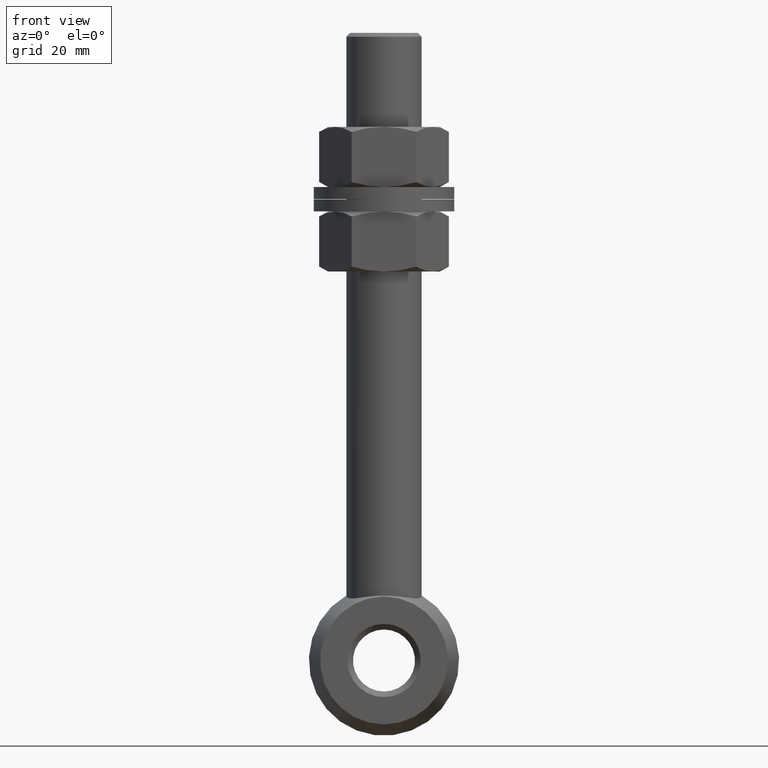
[diagram: clean part render]
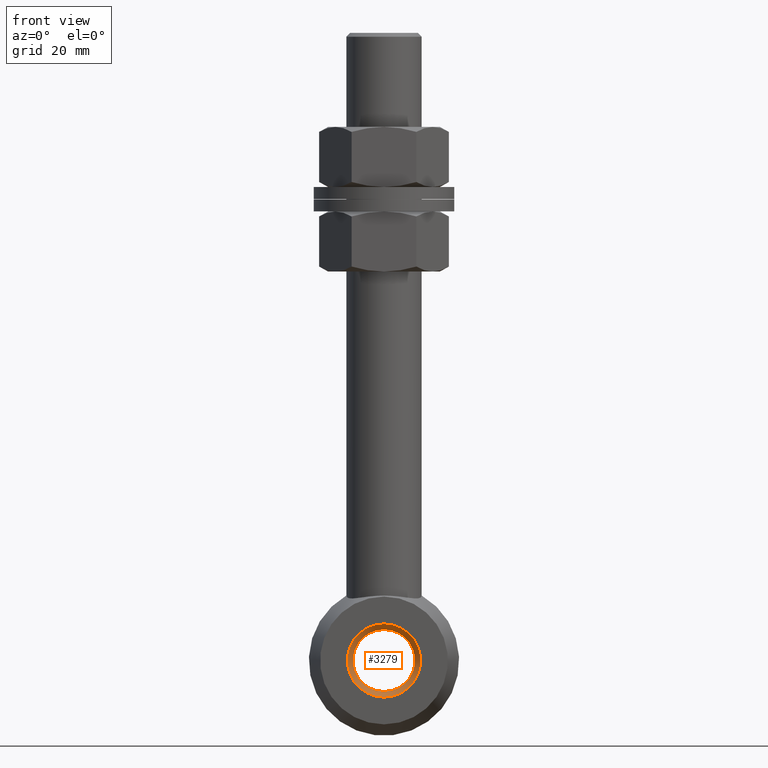
[diagram: same view with one face highlighted and labeled with its STEP entity id]
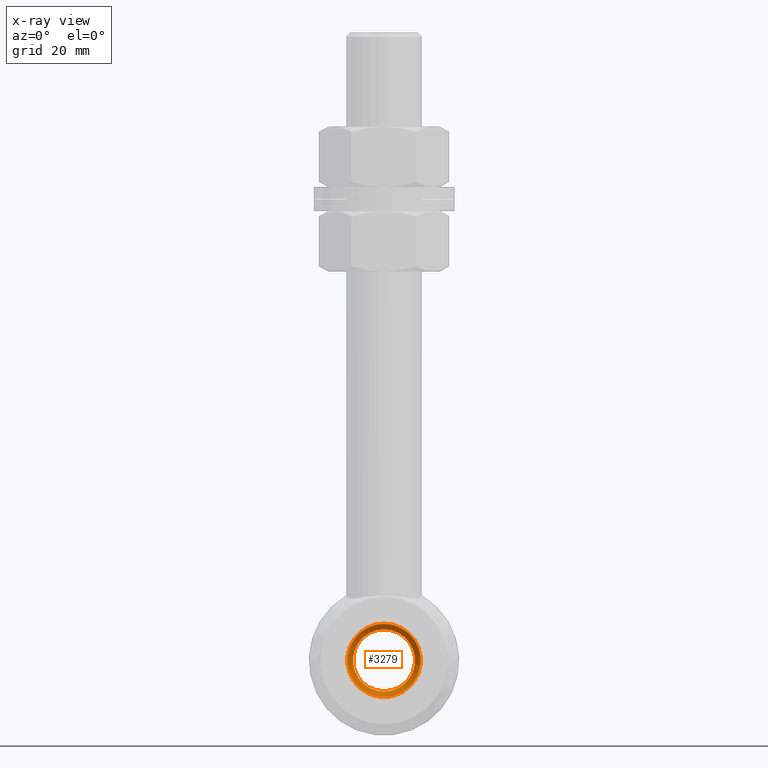
[diagram: x-ray of the same camera — body ghosted, the highlighted face saturated]
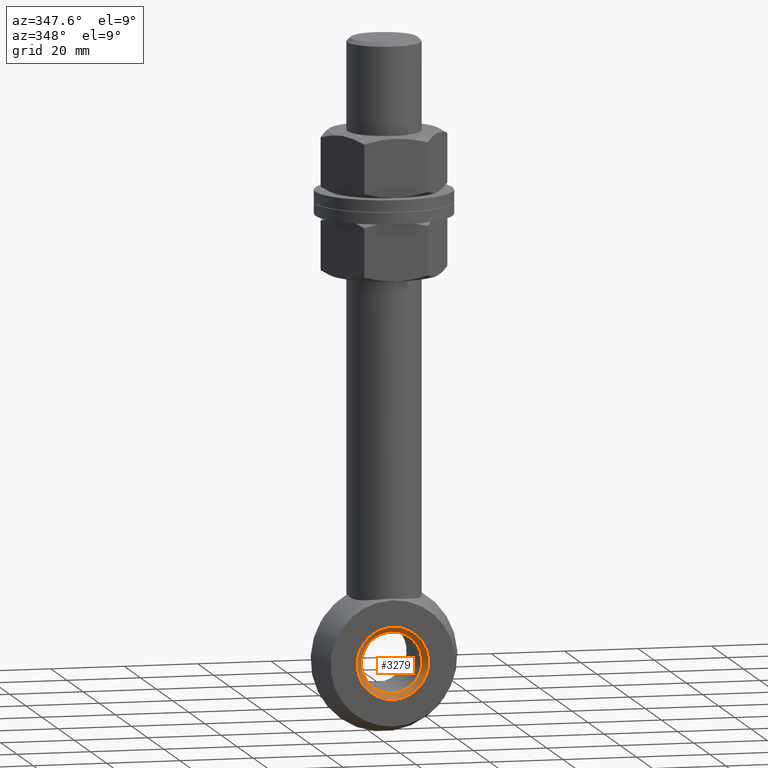
[diagram: same view with one face highlighted and labeled with its STEP entity id]
A machine part, front view. The second image highlights one B-rep face of the part: STEP entity #3279.
The next image is the same camera in x-ray: the body ghosted, the highlighted face saturated — about 0% of this face is hidden behind the body in this view.
A second angle (auxiliary view) of the same face is appended — the face is thin or edge-on in the first view.
In plain terms, the highlighted conical surface has half-angle 45 deg.
Its self-contained STEP definition (entity closure, byte-faithful):
#27 = EDGE_CURVE ( 'NONE', #184, #184, #3883, .T. ) ;
#184 = VERTEX_POINT ( 'NONE', #5582 ) ;
#225 = DIRECTION ( 'NONE',  ( -0.000000000000000000, -1.000000000000000000, -0.000000000000000000 ) ) ;
#286 = DIRECTION ( 'NONE',  ( 0.000000000000000000, 0.000000000000000000, -1.000000000000000000 ) ) ;
#766 = DIRECTION ( 'NONE',  ( 0.000000000000000000, 0.000000000000000000, 1.000000000000000000 ) ) ;
#931 = EDGE_CURVE ( 'NONE', #2115, #2115, #3979, .T. ) ;
#1274 = CARTESIAN_POINT ( 'NONE',  ( 0.000000000000000000, -11.00000000000000000, -83.50000000000000000 ) ) ;
#1630 = FACE_BOUND ( 'NONE', #4254, .T. ) ;
#2115 = VERTEX_POINT ( 'NONE', #3780 ) ;
#2833 = CARTESIAN_POINT ( 'NONE',  ( 0.000000000000000000, -11.00000000000000000, -83.50000000000000000 ) ) ;
#3053 = FACE_OUTER_BOUND ( 'NONE', #4078, .T. ) ;
#3180 = ORIENTED_EDGE ( 'NONE', *, *, #27, .F. ) ;
#3279 = ADVANCED_FACE ( 'NONE', ( #1630, #3053 ), #4787, .F. ) ;
#3421 = CARTESIAN_POINT ( 'NONE',  ( 0.000000000000000000, -9.499999999999991118, -83.50000000000000000 ) ) ;
#3762 = DIRECTION ( 'NONE',  ( 0.000000000000000000, 0.000000000000000000, 1.000000000000000000 ) ) ;
#3780 = CARTESIAN_POINT ( 'NONE',  ( 0.000000000000000000, -11.00000000000000000, -73.75000000000000000 ) ) ;
#3809 = AXIS2_PLACEMENT_3D ( 'NONE', #3421, #225, #766 ) ;
#3838 = ORIENTED_EDGE ( 'NONE', *, *, #931, .F. ) ;
#3883 = CIRCLE ( 'NONE', #3809, 8.250000000000007105 ) ;
#3979 = CIRCLE ( 'NONE', #5715, 9.750000000000008882 ) ;
#4078 = EDGE_LOOP ( 'NONE', ( #3838 ) ) ;
#4254 = EDGE_LOOP ( 'NONE', ( #3180 ) ) ;
#4294 = DIRECTION ( 'NONE',  ( 0.000000000000000000, 1.000000000000000000, 0.000000000000000000 ) ) ;
#4787 = CONICAL_SURFACE ( 'NONE', #5412, 9.750000000000008882, 0.7853981633974477239 ) ;
#5412 = AXIS2_PLACEMENT_3D ( 'NONE', #1274, #5529, #286 ) ;
#5529 = DIRECTION ( 'NONE',  ( -0.000000000000000000, -1.000000000000000000, -0.000000000000000000 ) ) ;
#5582 = CARTESIAN_POINT ( 'NONE',  ( 0.000000000000000000, -9.499999999999991118, -75.25000000000000000 ) ) ;
#5715 = AXIS2_PLACEMENT_3D ( 'NONE', #2833, #4294, #3762 ) ;